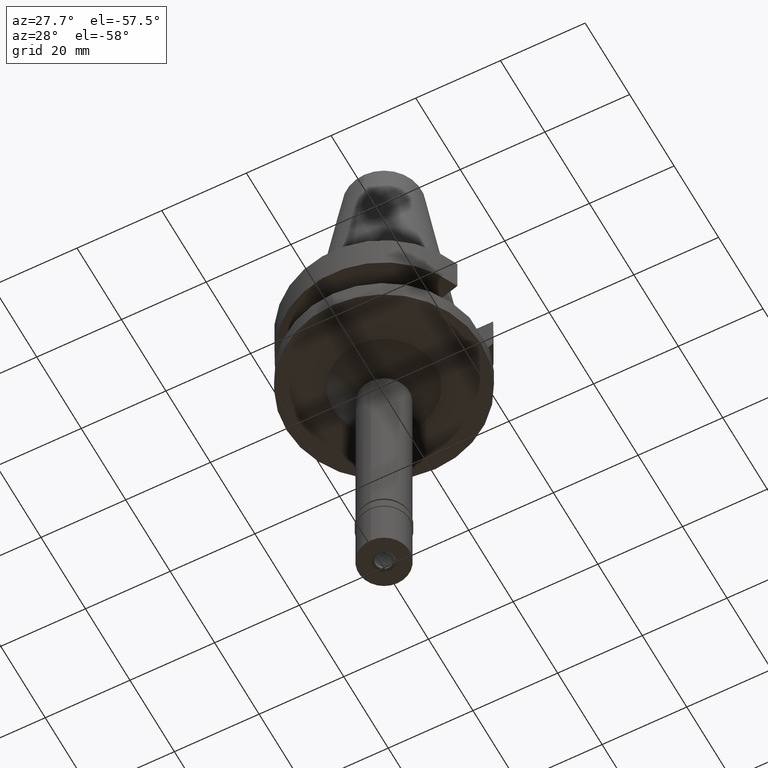
[diagram: clean part render]
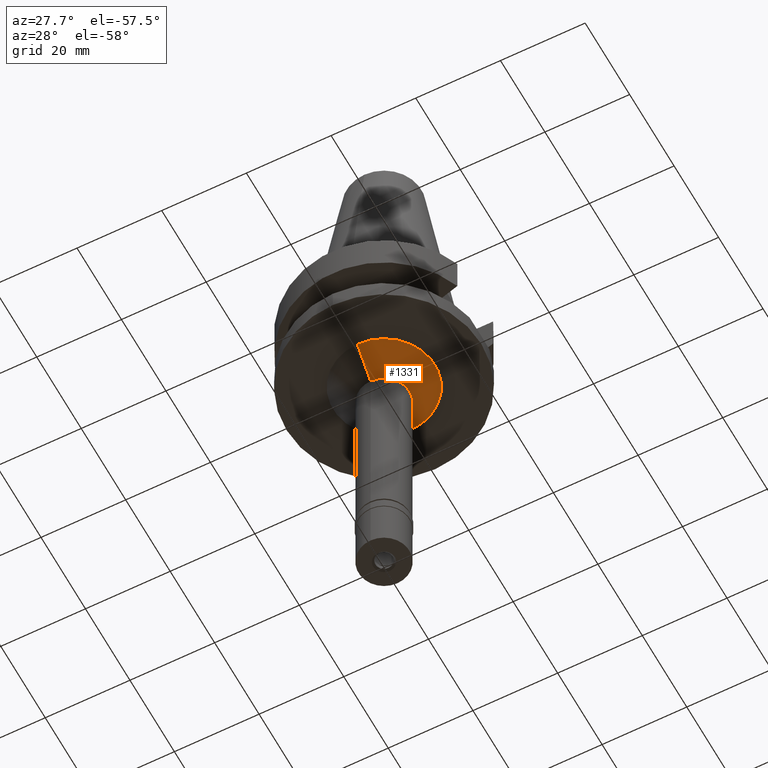
[diagram: same view with one face highlighted and labeled with its STEP entity id]
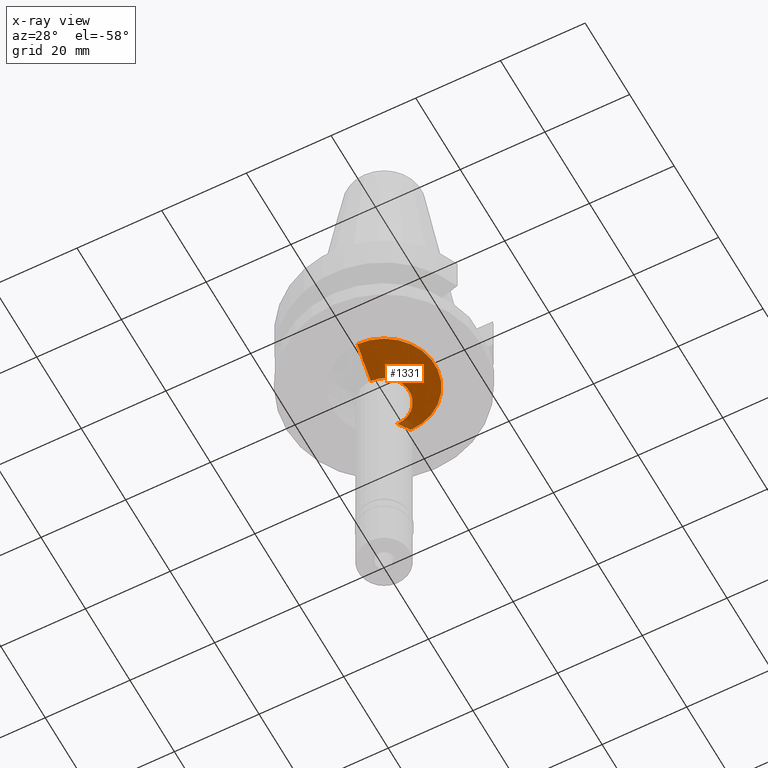
[diagram: x-ray of the same camera — body ghosted, the highlighted face saturated]
A machine part, auxiliary view. The second image highlights one B-rep face of the part: STEP entity #1331.
The next image is the same camera in x-ray: the body ghosted, the highlighted face saturated — about 2% of this face is hidden behind the body in this view.
In plain terms, the highlighted conical surface has half-angle 45 deg.
Its self-contained STEP definition (entity closure, byte-faithful):
#30 = CIRCLE ( 'NONE', #257, 12.00179173278999833 ) ;
#47 = ORIENTED_EDGE ( 'NONE', *, *, #1893, .T. ) ;
#144 = DIRECTION ( 'NONE',  ( 0.0000000000000000000, -0.7071067811866476038, -0.7071067811864475416 ) ) ;
#208 = AXIS2_PLACEMENT_3D ( 'NONE', #1335, #473, #1366 ) ;
#257 = AXIS2_PLACEMENT_3D ( 'NONE', #1833, #939, #969 ) ;
#280 = EDGE_LOOP ( 'NONE', ( #1107, #47, #2627, #2050 ) ) ;
#453 = VERTEX_POINT ( 'NONE', #2749 ) ;
#473 = DIRECTION ( 'NONE',  ( 0.0000000000000000000, 0.0000000000000000000, 1.000000000000000000 ) ) ;
#674 = VECTOR ( 'NONE', #144, 1000.000000000000000 ) ;
#819 = CONICAL_SURFACE ( 'NONE', #208, 9.001791732785999756, 0.7853981633972997312 ) ;
#828 = EDGE_CURVE ( 'NONE', #2552, #1648, #957, .T. ) ;
#926 = EDGE_CURVE ( 'NONE', #453, #2407, #30, .T. ) ;
#939 = DIRECTION ( 'NONE',  ( 0.0000000000000000000, 0.0000000000000000000, -1.000000000000000000 ) ) ;
#957 = CIRCLE ( 'NONE', #1293, 6.001791732784999667 ) ;
#969 = DIRECTION ( 'NONE',  ( 0.0000000000000000000, 1.000000000000000000, 0.0000000000000000000 ) ) ;
#1107 = ORIENTED_EDGE ( 'NONE', *, *, #926, .T. ) ;
#1293 = AXIS2_PLACEMENT_3D ( 'NONE', #2221, #1740, #1548 ) ;
#1331 = ADVANCED_FACE ( 'NONE', ( #1801 ), #819, .T. ) ;
#1335 = CARTESIAN_POINT ( 'NONE',  ( 0.0000000000000000000, 0.0000000000000000000, -25.00000000000000000 ) ) ;
#1366 = DIRECTION ( 'NONE',  ( 0.0000000000000000000, 1.000000000000000000, 0.0000000000000000000 ) ) ;
#1372 = CARTESIAN_POINT ( 'NONE',  ( 0.0000000000000000000, -12.00179173278999833, -22.00000000000000000 ) ) ;
#1529 = EDGE_CURVE ( 'NONE', #453, #2552, #1907, .T. ) ;
#1548 = DIRECTION ( 'NONE',  ( 0.0000000000000000000, 1.000000000000000000, 0.0000000000000000000 ) ) ;
#1648 = VERTEX_POINT ( 'NONE', #2643 ) ;
#1740 = DIRECTION ( 'NONE',  ( 0.0000000000000000000, 0.0000000000000000000, -1.000000000000000000 ) ) ;
#1801 = FACE_OUTER_BOUND ( 'NONE', #280, .T. ) ;
#1833 = CARTESIAN_POINT ( 'NONE',  ( 0.0000000000000000000, 0.0000000000000000000, -22.00000000000000000 ) ) ;
#1893 = EDGE_CURVE ( 'NONE', #2407, #1648, #2266, .T. ) ;
#1907 = LINE ( 'NONE', #2566, #674 ) ;
#2050 = ORIENTED_EDGE ( 'NONE', *, *, #1529, .F. ) ;
#2102 = CARTESIAN_POINT ( 'NONE',  ( 0.0000000000000000000, 6.001791732784999667, -28.00000000000000000 ) ) ;
#2221 = CARTESIAN_POINT ( 'NONE',  ( 0.0000000000000000000, 0.0000000000000000000, -28.00000000000000000 ) ) ;
#2266 = LINE ( 'NONE', #2480, #2405 ) ;
#2405 = VECTOR ( 'NONE', #2509, 1000.000000000000000 ) ;
#2407 = VERTEX_POINT ( 'NONE', #1372 ) ;
#2480 = CARTESIAN_POINT ( 'NONE',  ( 0.0000000000000000000, -12.00179173278999833, -22.00000000000000000 ) ) ;
#2509 = DIRECTION ( 'NONE',  ( 0.0000000000000000000, 0.7071067811866476038, -0.7071067811864475416 ) ) ;
#2552 = VERTEX_POINT ( 'NONE', #2102 ) ;
#2566 = CARTESIAN_POINT ( 'NONE',  ( 0.0000000000000000000, 12.00179173278999833, -22.00000000000000000 ) ) ;
#2627 = ORIENTED_EDGE ( 'NONE', *, *, #828, .F. ) ;
#2643 = CARTESIAN_POINT ( 'NONE',  ( 0.0000000000000000000, -6.001791732784999667, -28.00000000000000000 ) ) ;
#2749 = CARTESIAN_POINT ( 'NONE',  ( 0.0000000000000000000, 12.00179173278999833, -22.00000000000000000 ) ) ;